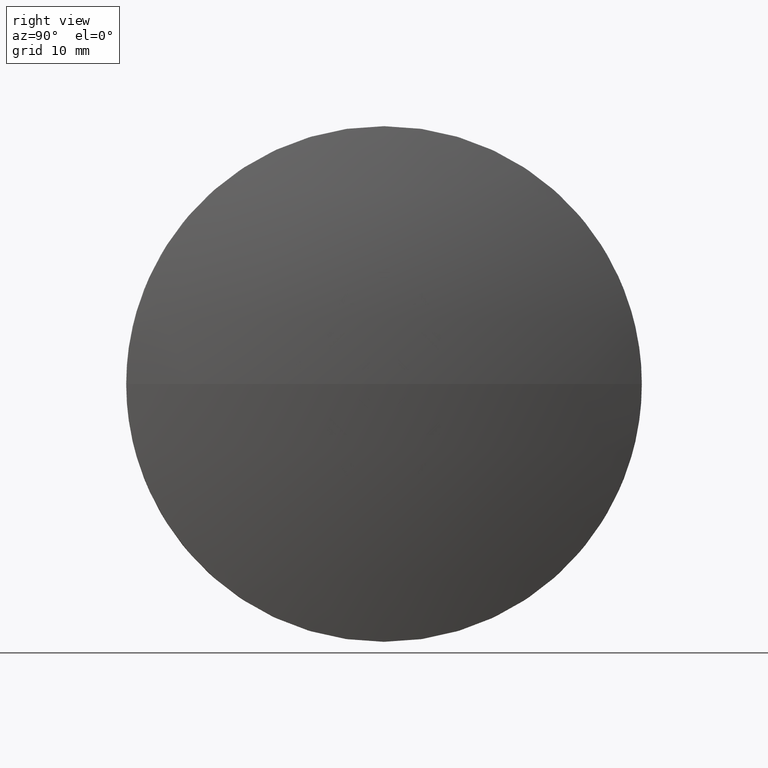
[diagram: clean part render]
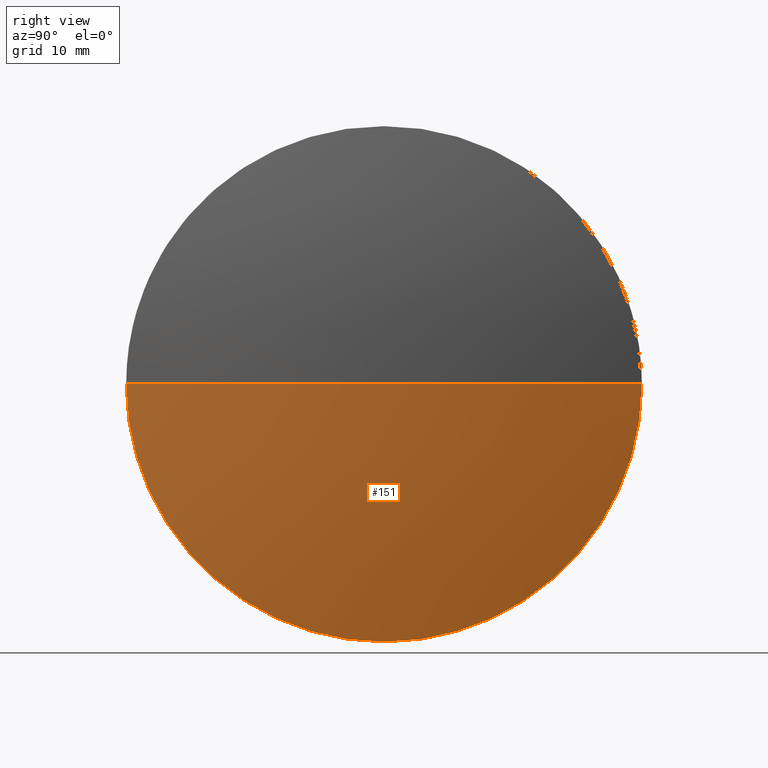
[diagram: same view with one face highlighted and labeled with its STEP entity id]
A machine part, right view. The second image highlights one B-rep face of the part: STEP entity #151.
In plain terms, the highlighted spherical surface has radius 129.161 mm.
Its self-contained STEP definition (entity closure, byte-faithful):
#6 = CARTESIAN_POINT ( 'NONE',  ( 530.9541059465552700, -95.63054328457163000, -3.857637417314161900E-015 ) ) ;
#18 = CARTESIAN_POINT ( 'NONE',  ( 534.8541059465552500, -64.13054328457161500, 0.0000000000000000000 ) ) ;
#19 = CARTESIAN_POINT ( 'NONE',  ( 405.6925674850170400, -64.13054328457163000, 0.0000000000000000000 ) ) ;
#22 = VERTEX_POINT ( 'NONE', #73 ) ;
#31 = CARTESIAN_POINT ( 'NONE',  ( 530.9541059465552700, -64.13054328457161500, 0.0000000000000000000 ) ) ;
#32 = CIRCLE ( 'NONE', #41, 31.50000000000000000 ) ;
#39 = FACE_OUTER_BOUND ( 'NONE', #56, .T. ) ;
#41 = AXIS2_PLACEMENT_3D ( 'NONE', #110, #157, #158 ) ;
#44 = CARTESIAN_POINT ( 'NONE',  ( 530.9541059465552700, -64.13054328457161500, -31.50000000000000000 ) ) ;
#45 = ORIENTED_EDGE ( 'NONE', *, *, #72, .F. ) ;
#48 = CARTESIAN_POINT ( 'NONE',  ( 405.6925674850170400, -64.13054328457163000, 0.0000000000000000000 ) ) ;
#50 = DIRECTION ( 'NONE',  ( -1.000000000000000000, -0.0000000000000000000, -0.0000000000000000000 ) ) ;
#53 = AXIS2_PLACEMENT_3D ( 'NONE', #48, #62, #168 ) ;
#56 = EDGE_LOOP ( 'NONE', ( #45, #136, #68, #88 ) ) ;
#61 = AXIS2_PLACEMENT_3D ( 'NONE', #31, #50, #161 ) ;
#62 = DIRECTION ( 'NONE',  ( 0.0000000000000000000, 1.224646799147353200E-016, -1.000000000000000000 ) ) ;
#67 = DIRECTION ( 'NONE',  ( -0.0000000000000000000, 0.0000000000000000000, -1.000000000000000000 ) ) ;
#68 = ORIENTED_EDGE ( 'NONE', *, *, #86, .F. ) ;
#69 = AXIS2_PLACEMENT_3D ( 'NONE', #155, #67, #131 ) ;
#70 = CIRCLE ( 'NONE', #108, 129.1615384615382100 ) ;
#72 = EDGE_CURVE ( 'NONE', #99, #22, #70, .T. ) ;
#73 = CARTESIAN_POINT ( 'NONE',  ( 530.9541059465552700, -32.63054328457162300, 0.0000000000000000000 ) ) ;
#86 = EDGE_CURVE ( 'NONE', #142, #107, #32, .T. ) ;
#88 = ORIENTED_EDGE ( 'NONE', *, *, #177, .F. ) ;
#90 = DIRECTION ( 'NONE',  ( -0.0000000000000000000, 0.0000000000000000000, 1.000000000000000000 ) ) ;
#93 = EDGE_CURVE ( 'NONE', #99, #107, #124, .T. ) ;
#99 = VERTEX_POINT ( 'NONE', #18 ) ;
#107 = VERTEX_POINT ( 'NONE', #6 ) ;
#108 = AXIS2_PLACEMENT_3D ( 'NONE', #19, #90, #144 ) ;
#110 = CARTESIAN_POINT ( 'NONE',  ( 530.9541059465552700, -64.13054328457161500, 0.0000000000000000000 ) ) ;
#118 = CIRCLE ( 'NONE', #61, 31.50000000000000000 ) ;
#124 = CIRCLE ( 'NONE', #53, 129.1615384615382100 ) ;
#131 = DIRECTION ( 'NONE',  ( 0.0000000000000000000, 1.000000000000000000, 0.0000000000000000000 ) ) ;
#136 = ORIENTED_EDGE ( 'NONE', *, *, #93, .T. ) ;
#142 = VERTEX_POINT ( 'NONE', #44 ) ;
#144 = DIRECTION ( 'NONE',  ( 1.000000000000000000, 0.0000000000000000000, 0.0000000000000000000 ) ) ;
#151 = ADVANCED_FACE ( 'NONE', ( #39 ), #162, .T. ) ;
#155 = CARTESIAN_POINT ( 'NONE',  ( 405.6925674850170400, -64.13054328457163000, 0.0000000000000000000 ) ) ;
#157 = DIRECTION ( 'NONE',  ( -1.000000000000000000, -0.0000000000000000000, -0.0000000000000000000 ) ) ;
#158 = DIRECTION ( 'NONE',  ( 0.0000000000000000000, 0.0000000000000000000, 1.000000000000000000 ) ) ;
#161 = DIRECTION ( 'NONE',  ( 0.0000000000000000000, 0.0000000000000000000, 1.000000000000000000 ) ) ;
#162 = SPHERICAL_SURFACE ( 'NONE', #69, 129.1615384615382100 ) ;
#168 = DIRECTION ( 'NONE',  ( 0.0000000000000000000, 1.000000000000000000, 1.224646799147353000E-016 ) ) ;
#177 = EDGE_CURVE ( 'NONE', #22, #142, #118, .T. ) ;